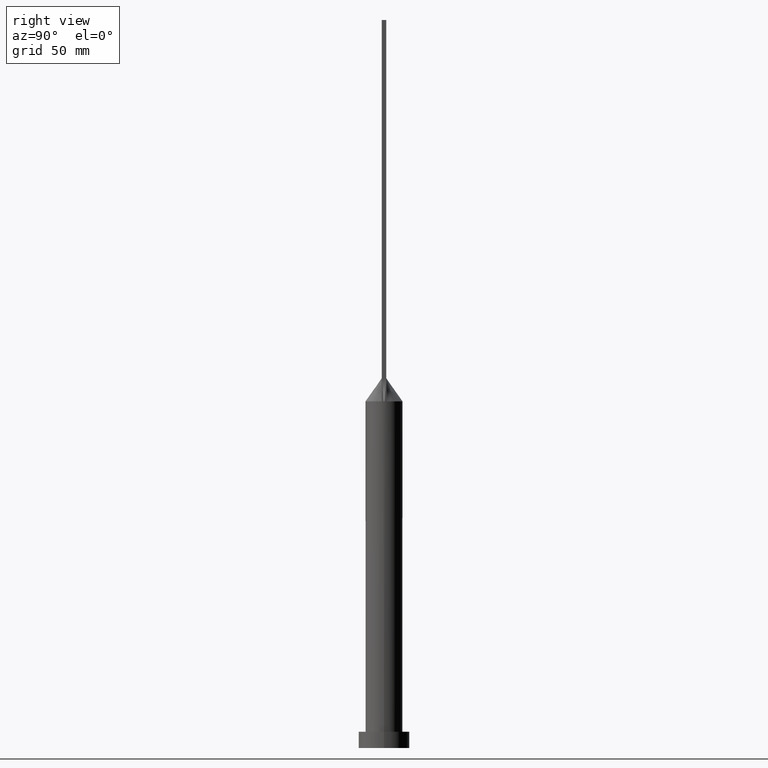
[diagram: clean part render]
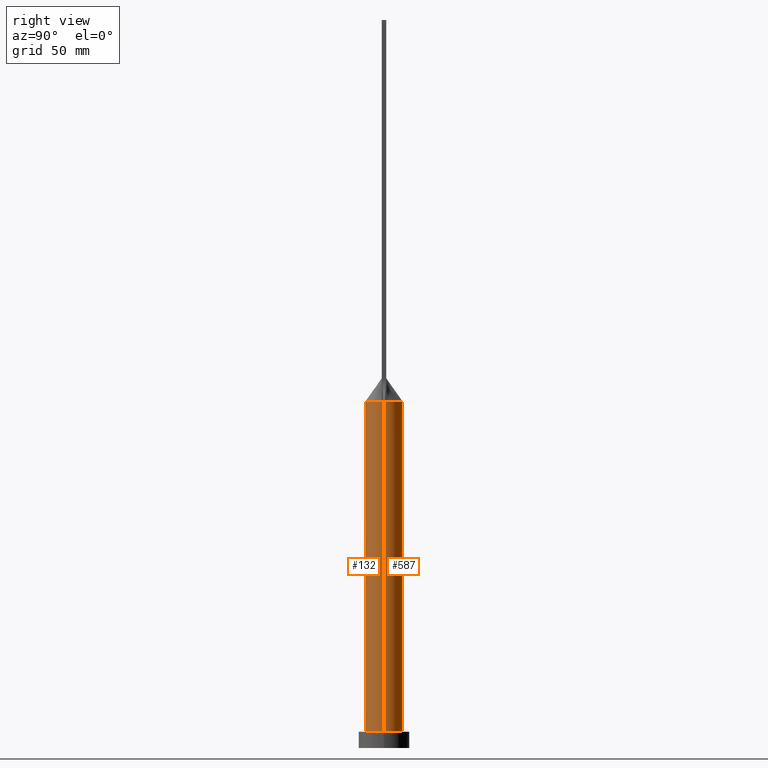
[diagram: same view with one multi-face feature highlighted, each face labeled with its STEP entity id]
A machine part, right view. The highlighted faces form ONE feature: a constant-radius fillet chain: 2 tangent blend faces with common blend radius 8 mm. The faces share edges in the B-rep.
Their STEP definitions:
[1] entity #587 (Cylinder):
#4 = VERTEX_POINT ( 'NONE', #477 ) ;
#6 = CARTESIAN_POINT ( 'NONE',  ( 6.226863775955932212, 5.046530946333158241, 149.9999999999999716 ) ) ;
#12 = CARTESIAN_POINT ( 'NONE',  ( 6.511821874825409751, 4.668925682402791821, 149.9999999999999716 ) ) ;
#22 = CARTESIAN_POINT ( 'NONE',  ( 8.000000000000000000, 9.797174393178825657E-16, 7.000000000000000000 ) ) ;
#23 = CARTESIAN_POINT ( 'NONE',  ( -6.511821874825407974, 4.668925682402791821, 149.9999999999999716 ) ) ;
#27 = CARTESIAN_POINT ( 'NONE',  ( 2.847317194822259534, 7.497028652483948008, 150.0000000000000000 ) ) ;
#31 = DIRECTION ( 'NONE',  ( 0.000000000000000000, 0.000000000000000000, 1.000000000000000000 ) ) ;
#39 = ORIENTED_EDGE ( 'NONE', *, *, #271, .T. ) ;
#44 = EDGE_CURVE ( 'NONE', #514, #231, #258, .T. ) ;
#70 = ORIENTED_EDGE ( 'NONE', *, *, #443, .T. ) ;
#71 = CARTESIAN_POINT ( 'NONE',  ( -8.000000000000000000, 0.000000000000000000, 150.0000000000000000 ) ) ;
#73 = EDGE_LOOP ( 'NONE', ( #236, #70, #39, #187, #222, #176 ) ) ;
#76 = CARTESIAN_POINT ( 'NONE',  ( -6.226863775955933100, 5.046530946333157353, 150.0000000000000000 ) ) ;
#108 = DIRECTION ( 'NONE',  ( 1.000000000000000000, 0.000000000000000000, 0.000000000000000000 ) ) ;
#115 = CARTESIAN_POINT ( 'NONE',  ( 0.000000000000000000, 0.000000000000000000, 150.0000000000000000 ) ) ;
#116 = CIRCLE ( 'NONE', #640, 8.000000000000000000 ) ;
#121 = CARTESIAN_POINT ( 'NONE',  ( -7.675166908885236339, 2.399868494543667907, 150.0000000000000284 ) ) ;
#129 = CARTESIAN_POINT ( 'NONE',  ( 2.302877821226935406, 7.683241396761612663, 150.0000000000000000 ) ) ;
#141 = VERTEX_POINT ( 'NONE', #564 ) ;
#153 = CARTESIAN_POINT ( 'NONE',  ( 7.934252830235720033, 1.023774570959714802, 150.0000000000000000 ) ) ;
#170 = CARTESIAN_POINT ( 'NONE',  ( 0.000000000000000000, 0.000000000000000000, 150.0000000000000000 ) ) ;
#174 = CARTESIAN_POINT ( 'NONE',  ( -1.172177046651856402, 7.934824862069282503, 150.0000000000000000 ) ) ;
#176 = ORIENTED_EDGE ( 'NONE', *, *, #293, .F. ) ;
#177 = CARTESIAN_POINT ( 'NONE',  ( -7.192469010134845853, 3.526369025759696019, 149.9999999999999716 ) ) ;
#178 = LINE ( 'NONE', #71, #336 ) ;
#187 = ORIENTED_EDGE ( 'NONE', *, *, #337, .F. ) ;
#208 = CARTESIAN_POINT ( 'NONE',  ( 5.562660223239392465, 5.770452176164421410, 149.9999999999999716 ) ) ;
#220 = LINE ( 'NONE', #227, #291 ) ;
#222 = ORIENTED_EDGE ( 'NONE', *, *, #255, .F. ) ;
#227 = CARTESIAN_POINT ( 'NONE',  ( 8.000000000000000000, 9.797174393178825657E-16, 150.0000000000000000 ) ) ;
#231 = VERTEX_POINT ( 'NONE', #597 ) ;
#236 = ORIENTED_EDGE ( 'NONE', *, *, #44, .F. ) ;
#240 = DIRECTION ( 'NONE',  ( -0.000000000000000000, -0.000000000000000000, -1.000000000000000000 ) ) ;
#245 = CARTESIAN_POINT ( 'NONE',  ( 0.000000000000000000, 0.000000000000000000, 150.0000000000000000 ) ) ;
#255 = EDGE_CURVE ( 'NONE', #4, #141, #283, .T. ) ;
#258 = CIRCLE ( 'NONE', #407, 8.000000000000000000 ) ;
#262 = CARTESIAN_POINT ( 'NONE',  ( 7.675166908885234562, 2.399868494543665243, 149.9999999999999147 ) ) ;
#266 = DIRECTION ( 'NONE',  ( 0.000000000000000000, 0.000000000000000000, 1.000000000000000000 ) ) ;
#271 = EDGE_CURVE ( 'NONE', #380, #373, #116, .T. ) ;
#273 = CARTESIAN_POINT ( 'NONE',  ( 0.5861720261543130750, 7.999999999999998224, 149.9999999999999716 ) ) ;
#281 = CARTESIAN_POINT ( 'NONE',  ( 1.172177046651856624, 7.934824862069278950, 150.0000000000000000 ) ) ;
#283 = CIRCLE ( 'NONE', #374, 8.000000000000000000 ) ;
#291 = VECTOR ( 'NONE', #240, 1000.000000000000000 ) ;
#292 = DIRECTION ( 'NONE',  ( -1.000000000000000000, 0.000000000000000000, 0.000000000000000000 ) ) ;
#293 = EDGE_CURVE ( 'NONE', #231, #4, #578, .T. ) ;
#298 = CYLINDRICAL_SURFACE ( 'NONE', #434, 8.000000000000000000 ) ;
#309 = DIRECTION ( 'NONE',  ( 1.000000000000000000, 0.000000000000000000, 0.000000000000000000 ) ) ;
#316 = CARTESIAN_POINT ( 'NONE',  ( -4.333237558274722900, 6.745559271922134670, 150.0000000000000000 ) ) ;
#331 = DIRECTION ( 'NONE',  ( 1.000000000000000000, 0.000000000000000000, 0.000000000000000000 ) ) ;
#336 = VECTOR ( 'NONE', #504, 1000.000000000000000 ) ;
#337 = EDGE_CURVE ( 'NONE', #141, #373, #178, .T. ) ;
#353 = CARTESIAN_POINT ( 'NONE',  ( 7.849610172922079521, 1.679519592204998801, 149.9999999999999432 ) ) ;
#363 = CARTESIAN_POINT ( 'NONE',  ( 5.183259239191615464, 6.116644610143058713, 150.0000000000000000 ) ) ;
#370 = CARTESIAN_POINT ( 'NONE',  ( -6.994548530637814565, 3.908833842696238570, 149.9999999999999432 ) ) ;
#373 = VERTEX_POINT ( 'NONE', #518 ) ;
#374 = AXIS2_PLACEMENT_3D ( 'NONE', #115, #266, #309 ) ;
#380 = VERTEX_POINT ( 'NONE', #22 ) ;
#395 = DIRECTION ( 'NONE',  ( 0.000000000000000000, 0.000000000000000000, 1.000000000000000000 ) ) ;
#398 = CARTESIAN_POINT ( 'NONE',  ( 0.000000000000000000, 0.000000000000000000, 7.000000000000000000 ) ) ;
#407 = AXIS2_PLACEMENT_3D ( 'NONE', #170, #31, #331 ) ;
#415 = CARTESIAN_POINT ( 'NONE',  ( -5.183259239191613688, 6.116644610143057825, 150.0000000000000568 ) ) ;
#418 = CARTESIAN_POINT ( 'NONE',  ( -0.5861720261543129640, 7.999999999999998224, 149.9999999999999432 ) ) ;
#434 = AXIS2_PLACEMENT_3D ( 'NONE', #245, #487, #292 ) ;
#443 = EDGE_CURVE ( 'NONE', #514, #380, #220, .T. ) ;
#444 = CARTESIAN_POINT ( 'NONE',  ( 7.192469010134847629, 3.526369025759696907, 150.0000000000000284 ) ) ;
#449 = CARTESIAN_POINT ( 'NONE',  ( 6.994548530637815453, 3.908833842696238570, 149.9999999999999716 ) ) ;
#459 = CARTESIAN_POINT ( 'NONE',  ( -2.302877821226935851, 7.683241396761610886, 150.0000000000000000 ) ) ;
#466 = CARTESIAN_POINT ( 'NONE',  ( -7.849610172922081297, 1.679519592204999023, 149.9999999999999716 ) ) ;
#477 = CARTESIAN_POINT ( 'NONE',  ( -7.934264564332944580, 1.023776086464161406, 150.0000000000000000 ) ) ;
#487 = DIRECTION ( 'NONE',  ( -0.000000000000000000, -0.000000000000000000, -1.000000000000000000 ) ) ;
#504 = DIRECTION ( 'NONE',  ( -0.000000000000000000, -0.000000000000000000, -1.000000000000000000 ) ) ;
#507 = CARTESIAN_POINT ( 'NONE',  ( -3.862537548001455878, 7.028047916340264045, 150.0000000000000000 ) ) ;
#514 = VERTEX_POINT ( 'NONE', #590 ) ;
#518 = CARTESIAN_POINT ( 'NONE',  ( -8.000000000000000000, 0.000000000000000000, 7.000000000000000000 ) ) ;
#532 = FACE_OUTER_BOUND ( 'NONE', #73, .T. ) ;
#542 = CARTESIAN_POINT ( 'NONE',  ( 4.333237558274722900, 6.745559271922132893, 150.0000000000000000 ) ) ;
#544 = CARTESIAN_POINT ( 'NONE',  ( -2.847317194822260422, 7.497028652483947120, 150.0000000000000000 ) ) ;
#557 = CARTESIAN_POINT ( 'NONE',  ( -7.934264564332944580, 1.023776086464161406, 150.0000000000000000 ) ) ;
#564 = CARTESIAN_POINT ( 'NONE',  ( -7.999864793045825984, 2.648518981350782698E-14, 150.0000000000000000 ) ) ;
#578 = B_SPLINE_CURVE_WITH_KNOTS ( 'NONE', 3,
 ( #153, #353, #262, #444, #449, #12, #6, #208, #363, #542, #586, #27, #129, #281, #273, #418, #174, #459, #544, #507, #316, #415, #615, #76, #23, #370, #177, #121, #466, #557 ),
 .UNSPECIFIED., .F., .F.,
 ( 4, 2, 2, 2, 2, 2, 2, 2, 2, 2, 2, 2, 2, 2, 4 ),
 ( 0.000000000000000000, 0.1250000000000000000, 0.1875000000000000000, 0.2500000000000000000, 0.3125000000000000000, 0.3750000000000000000, 0.4375000000000000000, 0.5000000000000000000, 0.5625000000000000000, 0.6250000000000000000, 0.6875000000000000000, 0.7500000000000000000, 0.8125000000000000000, 0.8750000000000000000, 1.000000000000000000 ),
 .UNSPECIFIED. ) ;
#586 = CARTESIAN_POINT ( 'NONE',  ( 3.862537548001455878, 7.028047916340264933, 150.0000000000000000 ) ) ;
#587 = ADVANCED_FACE ( 'NONE', ( #532 ), #298, .T. ) ;
#590 = CARTESIAN_POINT ( 'NONE',  ( 7.999864793045824207, 2.000157186781041891E-15, 150.0000000000000000 ) ) ;
#597 = CARTESIAN_POINT ( 'NONE',  ( 7.934252830235720033, 1.023774570959714802, 150.0000000000000000 ) ) ;
#615 = CARTESIAN_POINT ( 'NONE',  ( -5.562660223239390689, 5.770452176164420521, 149.9999999999999716 ) ) ;
#640 = AXIS2_PLACEMENT_3D ( 'NONE', #398, #395, #108 ) ;
[2] entity #132 (Cylinder):
#13 = CIRCLE ( 'NONE', #592, 8.000000000000000000 ) ;
#16 = CARTESIAN_POINT ( 'NONE',  ( -7.934257051336532029, -1.023775119746132001, 150.0000000000000000 ) ) ;
#22 = CARTESIAN_POINT ( 'NONE',  ( 8.000000000000000000, 9.797174393178825657E-16, 7.000000000000000000 ) ) ;
#71 = CARTESIAN_POINT ( 'NONE',  ( -8.000000000000000000, 0.000000000000000000, 150.0000000000000000 ) ) ;
#72 = CARTESIAN_POINT ( 'NONE',  ( 0.000000000000000000, 0.000000000000000000, 7.000000000000000000 ) ) ;
#88 = EDGE_CURVE ( 'NONE', #373, #380, #482, .T. ) ;
#94 = ORIENTED_EDGE ( 'NONE', *, *, #365, .F. ) ;
#100 = AXIS2_PLACEMENT_3D ( 'NONE', #282, #469, #567 ) ;
#119 = CIRCLE ( 'NONE', #439, 8.000000000000000000 ) ;
#122 = EDGE_CURVE ( 'NONE', #141, #288, #563, .T. ) ;
#132 = ADVANCED_FACE ( 'NONE', ( #233 ), #621, .T. ) ;
#137 = DIRECTION ( 'NONE',  ( -0.000000000000000000, -0.000000000000000000, -1.000000000000000000 ) ) ;
#141 = VERTEX_POINT ( 'NONE', #564 ) ;
#178 = LINE ( 'NONE', #71, #336 ) ;
#181 = CARTESIAN_POINT ( 'NONE',  ( 0.000000000000000000, 0.000000000000000000, 150.0000000000000000 ) ) ;
#214 = AXIS2_PLACEMENT_3D ( 'NONE', #72, #285, #579 ) ;
#220 = LINE ( 'NONE', #227, #291 ) ;
#227 = CARTESIAN_POINT ( 'NONE',  ( 8.000000000000000000, 9.797174393178825657E-16, 150.0000000000000000 ) ) ;
#233 = FACE_OUTER_BOUND ( 'NONE', #290, .T. ) ;
#240 = DIRECTION ( 'NONE',  ( -0.000000000000000000, -0.000000000000000000, -1.000000000000000000 ) ) ;
#268 = CARTESIAN_POINT ( 'NONE',  ( 0.000000000000000000, 0.000000000000000000, 150.0000000000000000 ) ) ;
#282 = CARTESIAN_POINT ( 'NONE',  ( 0.000000000000000000, 0.000000000000000000, 150.0000000000000000 ) ) ;
#285 = DIRECTION ( 'NONE',  ( 0.000000000000000000, 0.000000000000000000, 1.000000000000000000 ) ) ;
#288 = VERTEX_POINT ( 'NONE', #16 ) ;
#290 = EDGE_LOOP ( 'NONE', ( #341, #94, #358, #589, #431, #569 ) ) ;
#291 = VECTOR ( 'NONE', #240, 1000.000000000000000 ) ;
#324 = DIRECTION ( 'NONE',  ( 0.000000000000000000, 0.000000000000000000, 1.000000000000000000 ) ) ;
#325 = EDGE_CURVE ( 'NONE', #288, #641, #119, .T. ) ;
#328 = DIRECTION ( 'NONE',  ( 1.000000000000000000, 9.769962616701377556E-15, 0.000000000000000000 ) ) ;
#336 = VECTOR ( 'NONE', #504, 1000.000000000000000 ) ;
#337 = EDGE_CURVE ( 'NONE', #141, #373, #178, .T. ) ;
#338 = DIRECTION ( 'NONE',  ( -1.000000000000000000, 0.000000000000000000, 0.000000000000000000 ) ) ;
#341 = ORIENTED_EDGE ( 'NONE', *, *, #443, .F. ) ;
#351 = AXIS2_PLACEMENT_3D ( 'NONE', #181, #137, #338 ) ;
#358 = ORIENTED_EDGE ( 'NONE', *, *, #325, .F. ) ;
#365 = EDGE_CURVE ( 'NONE', #641, #514, #13, .T. ) ;
#373 = VERTEX_POINT ( 'NONE', #518 ) ;
#380 = VERTEX_POINT ( 'NONE', #22 ) ;
#424 = DIRECTION ( 'NONE',  ( 0.000000000000000000, 0.000000000000000000, 1.000000000000000000 ) ) ;
#431 = ORIENTED_EDGE ( 'NONE', *, *, #337, .T. ) ;
#439 = AXIS2_PLACEMENT_3D ( 'NONE', #551, #324, #512 ) ;
#443 = EDGE_CURVE ( 'NONE', #514, #380, #220, .T. ) ;
#469 = DIRECTION ( 'NONE',  ( 0.000000000000000000, 0.000000000000000000, 1.000000000000000000 ) ) ;
#482 = CIRCLE ( 'NONE', #214, 8.000000000000000000 ) ;
#504 = DIRECTION ( 'NONE',  ( -0.000000000000000000, -0.000000000000000000, -1.000000000000000000 ) ) ;
#512 = DIRECTION ( 'NONE',  ( 1.000000000000000000, 0.000000000000000000, 0.000000000000000000 ) ) ;
#514 = VERTEX_POINT ( 'NONE', #590 ) ;
#518 = CARTESIAN_POINT ( 'NONE',  ( -8.000000000000000000, 0.000000000000000000, 7.000000000000000000 ) ) ;
#551 = CARTESIAN_POINT ( 'NONE',  ( 0.000000000000000000, 0.000000000000000000, 150.0000000000000000 ) ) ;
#563 = CIRCLE ( 'NONE', #100, 8.000000000000000000 ) ;
#564 = CARTESIAN_POINT ( 'NONE',  ( -7.999864793045825984, 2.648518981350782698E-14, 150.0000000000000000 ) ) ;
#567 = DIRECTION ( 'NONE',  ( 1.000000000000000000, 0.000000000000000000, 0.000000000000000000 ) ) ;
#569 = ORIENTED_EDGE ( 'NONE', *, *, #88, .T. ) ;
#579 = DIRECTION ( 'NONE',  ( 1.000000000000000000, 0.000000000000000000, 0.000000000000000000 ) ) ;
#584 = CARTESIAN_POINT ( 'NONE',  ( 7.934268799922667981, -1.023776637617846319, 150.0000000000000000 ) ) ;
#589 = ORIENTED_EDGE ( 'NONE', *, *, #122, .F. ) ;
#590 = CARTESIAN_POINT ( 'NONE',  ( 7.999864793045824207, 2.000157186781041891E-15, 150.0000000000000000 ) ) ;
#592 = AXIS2_PLACEMENT_3D ( 'NONE', #268, #424, #328 ) ;
#621 = CYLINDRICAL_SURFACE ( 'NONE', #351, 8.000000000000000000 ) ;
#641 = VERTEX_POINT ( 'NONE', #584 ) ;